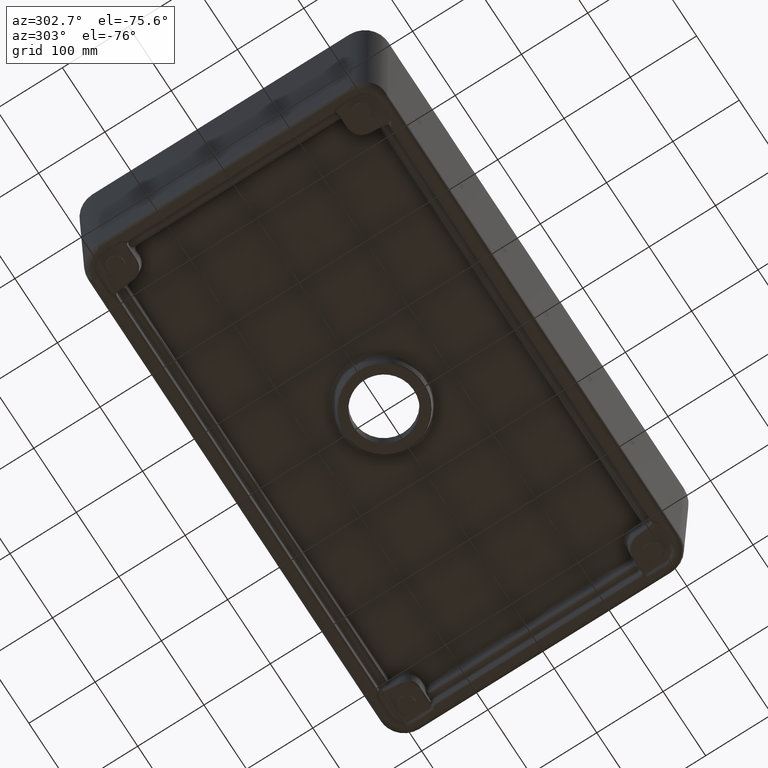
[diagram: clean part render]
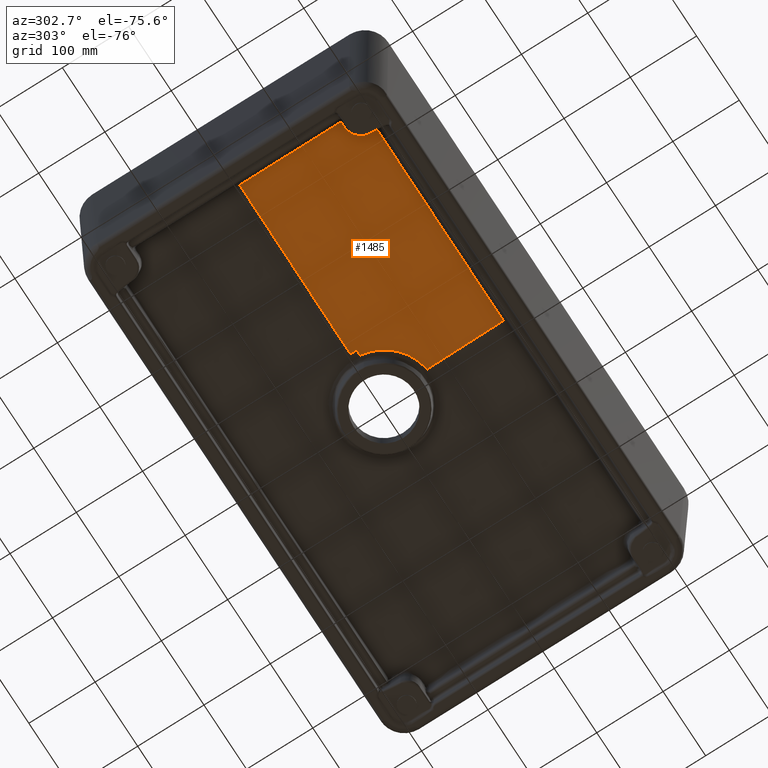
[diagram: same view with one face highlighted and labeled with its STEP entity id]
A machine part, auxiliary view. The second image highlights one B-rep face of the part: STEP entity #1485.
In plain terms, the highlighted face is a freeform B-spline surface patch.
Its self-contained STEP definition (entity closure, byte-faithful):
#373=B_SPLINE_SURFACE_WITH_KNOTS('',3,3,((#15187,#15188,#15189,#15190,#15191,
#15192,#15193,#15194,#15195,#15196,#15197,#15198,#15199,#15200,#15201,#15202,
#15203,#15204,#15205,#15206,#15207,#15208,#15209,#15210,#15211),(#15212,
#15213,#15214,#15215,#15216,#15217,#15218,#15219,#15220,#15221,#15222,#15223,
#15224,#15225,#15226,#15227,#15228,#15229,#15230,#15231,#15232,#15233,#15234,
#15235,#15236),(#15237,#15238,#15239,#15240,#15241,#15242,#15243,#15244,
#15245,#15246,#15247,#15248,#15249,#15250,#15251,#15252,#15253,#15254,#15255,
#15256,#15257,#15258,#15259,#15260,#15261),(#15262,#15263,#15264,#15265,
#15266,#15267,#15268,#15269,#15270,#15271,#15272,#15273,#15274,#15275,#15276,
#15277,#15278,#15279,#15280,#15281,#15282,#15283,#15284,#15285,#15286),
(#15287,#15288,#15289,#15290,#15291,#15292,#15293,#15294,#15295,#15296,
#15297,#15298,#15299,#15300,#15301,#15302,#15303,#15304,#15305,#15306,#15307,
#15308,#15309,#15310,#15311),(#15312,#15313,#15314,#15315,#15316,#15317,
#15318,#15319,#15320,#15321,#15322,#15323,#15324,#15325,#15326,#15327,#15328,
#15329,#15330,#15331,#15332,#15333,#15334,#15335,#15336),(#15337,#15338,
#15339,#15340,#15341,#15342,#15343,#15344,#15345,#15346,#15347,#15348,#15349,
#15350,#15351,#15352,#15353,#15354,#15355,#15356,#15357,#15358,#15359,#15360,
#15361)),.UNSPECIFIED.,.F.,.F.,.F.,(4,3,4),(4,3,3,3,3,3,3,3,4),(0.,0.5,
1.),(0.,0.125,0.25,0.375,0.5,0.625,0.75,0.875,1.),.UNSPECIFIED.);
#459=B_SPLINE_CURVE_WITH_KNOTS('',3,(#7396,#7397,#7398,#7399),
 .UNSPECIFIED.,.F.,.F.,(4,4),(0.,1.),.UNSPECIFIED.);
#731=B_SPLINE_CURVE_WITH_KNOTS('',3,(#15108,#15109,#15110,#15111,#15112,
#15113),.UNSPECIFIED.,.F.,.F.,(4,2,4),(0.,0.5,1.),.UNSPECIFIED.);
#732=B_SPLINE_CURVE_WITH_KNOTS('',3,(#15115,#15116,#15117,#15118),
 .UNSPECIFIED.,.F.,.F.,(4,4),(0.,1.),.UNSPECIFIED.);
#733=B_SPLINE_CURVE_WITH_KNOTS('',3,(#15120,#15121,#15122,#15123),
 .UNSPECIFIED.,.F.,.F.,(4,4),(0.,1.),.UNSPECIFIED.);
#734=B_SPLINE_CURVE_WITH_KNOTS('',3,(#15127,#15128,#15129,#15130,#15131),
 .UNSPECIFIED.,.F.,.F.,(4,1,4),(0.,0.0950788596363253,1.),.UNSPECIFIED.);
#735=B_SPLINE_CURVE_WITH_KNOTS('',3,(#15133,#15134,#15135,#15136,#15137),
 .UNSPECIFIED.,.F.,.F.,(4,1,4),(0.,0.0931165313621305,1.),.UNSPECIFIED.);
#736=B_SPLINE_CURVE_WITH_KNOTS('',3,(#15139,#15140,#15141,#15142),
 .UNSPECIFIED.,.F.,.F.,(4,4),(0.,1.),.UNSPECIFIED.);
#737=B_SPLINE_CURVE_WITH_KNOTS('',3,(#15144,#15145,#15146,#15147),
 .UNSPECIFIED.,.F.,.F.,(4,4),(0.,1.),.UNSPECIFIED.);
#738=B_SPLINE_CURVE_WITH_KNOTS('',3,(#15149,#15150,#15151,#15152),
 .UNSPECIFIED.,.F.,.F.,(4,4),(0.,1.),.UNSPECIFIED.);
#739=B_SPLINE_CURVE_WITH_KNOTS('',3,(#15154,#15155,#15156,#15157,#15158,
#15159),.UNSPECIFIED.,.F.,.F.,(4,2,4),(0.,0.5,1.),.UNSPECIFIED.);
#740=B_SPLINE_CURVE_WITH_KNOTS('',3,(#15161,#15162,#15163,#15164,#15165,
#15166,#15167),.UNSPECIFIED.,.F.,.F.,(4,3,4),(0.,0.68575544554334,1.),
 .UNSPECIFIED.);
#741=B_SPLINE_CURVE_WITH_KNOTS('',3,(#15169,#15170,#15171,#15172,#15173,
#15174,#15175,#15176),.UNSPECIFIED.,.F.,.F.,(4,2,2,4),(0.,0.5,0.75,1.),
 .UNSPECIFIED.);
#742=B_SPLINE_CURVE_WITH_KNOTS('',3,(#15178,#15179,#15180,#15181),
 .UNSPECIFIED.,.F.,.F.,(4,4),(0.,1.),.UNSPECIFIED.);
#743=B_SPLINE_CURVE_WITH_KNOTS('',3,(#15183,#15184,#15185,#15186),
 .UNSPECIFIED.,.F.,.F.,(4,4),(0.,1.),.UNSPECIFIED.);
#1195=CIRCLE('',#5991,71.7782195508756);
#1485=ADVANCED_FACE('',(#1852),#373,.T.);
#1852=FACE_OUTER_BOUND('',#2208,.T.);
#2208=EDGE_LOOP('',(#3368,#3369,#3370,#3371,#3372,#3373,#3374,#3375,#3376,
#3377,#3378,#3379,#3380,#3381,#3382));
#3368=ORIENTED_EDGE('',*,*,#5300,.F.);
#3369=ORIENTED_EDGE('',*,*,#5301,.T.);
#3370=ORIENTED_EDGE('',*,*,#5302,.T.);
#3371=ORIENTED_EDGE('',*,*,#5303,.F.);
#3372=ORIENTED_EDGE('',*,*,#5304,.F.);
#3373=ORIENTED_EDGE('',*,*,#5305,.F.);
#3374=ORIENTED_EDGE('',*,*,#5306,.F.);
#3375=ORIENTED_EDGE('',*,*,#5307,.F.);
#3376=ORIENTED_EDGE('',*,*,#5308,.T.);
#3377=ORIENTED_EDGE('',*,*,#5309,.F.);
#3378=ORIENTED_EDGE('',*,*,#5310,.F.);
#3379=ORIENTED_EDGE('',*,*,#5311,.F.);
#3380=ORIENTED_EDGE('',*,*,#5312,.F.);
#3381=ORIENTED_EDGE('',*,*,#5313,.F.);
#3382=ORIENTED_EDGE('',*,*,#4861,.F.);
#4286=VERTEX_POINT('',#7394);
#4288=VERTEX_POINT('',#7400);
#4547=VERTEX_POINT('',#15114);
#4548=VERTEX_POINT('',#15119);
#4549=VERTEX_POINT('',#15124);
#4550=VERTEX_POINT('',#15126);
#4551=VERTEX_POINT('',#15132);
#4552=VERTEX_POINT('',#15138);
#4553=VERTEX_POINT('',#15143);
#4554=VERTEX_POINT('',#15148);
#4555=VERTEX_POINT('',#15153);
#4556=VERTEX_POINT('',#15160);
#4557=VERTEX_POINT('',#15168);
#4558=VERTEX_POINT('',#15177);
#4559=VERTEX_POINT('',#15182);
#4861=EDGE_CURVE('',#4286,#4288,#459,.T.);
#5300=EDGE_CURVE('',#4547,#4286,#731,.T.);
#5301=EDGE_CURVE('',#4547,#4548,#732,.T.);
#5302=EDGE_CURVE('',#4548,#4549,#733,.T.);
#5303=EDGE_CURVE('',#4550,#4549,#1195,.T.);
#5304=EDGE_CURVE('',#4551,#4550,#734,.T.);
#5305=EDGE_CURVE('',#4552,#4551,#735,.T.);
#5306=EDGE_CURVE('',#4553,#4552,#736,.T.);
#5307=EDGE_CURVE('',#4554,#4553,#737,.T.);
#5308=EDGE_CURVE('',#4554,#4555,#738,.T.);
#5309=EDGE_CURVE('',#4556,#4555,#739,.T.);
#5310=EDGE_CURVE('',#4557,#4556,#740,.T.);
#5311=EDGE_CURVE('',#4558,#4557,#741,.T.);
#5312=EDGE_CURVE('',#4559,#4558,#742,.T.);
#5313=EDGE_CURVE('',#4288,#4559,#743,.T.);
#5991=AXIS2_PLACEMENT_3D('',#15125,#6557,#6558);
#6557=DIRECTION('',(-1.2094491980559E-019,-1.91999080117297E-017,-1.));
#6558=DIRECTION('',(0.,-1.,0.));
#7394=CARTESIAN_POINT('',(-79.3606609573244,1.58439389449932E-016,-16.2585486300568));
#7396=CARTESIAN_POINT('',(-79.3606609573244,1.58439389449932E-016,-16.2585486300568));
#7397=CARTESIAN_POINT('',(-165.957718779827,1.58439389449932E-016,-13.2293965314252));
#7398=CARTESIAN_POINT('',(-252.555019041305,-2.71884499943706E-014,-10.207179018662));
#7399=CARTESIAN_POINT('',(-339.152245823349,-2.71884499943706E-014,-7.1828609782121));
#7400=CARTESIAN_POINT('',(-339.152245823349,-2.71884499943706E-014,-7.1828609782121));
#15108=CARTESIAN_POINT('',(-78.7205268300096,-9.61161835579342,-16.2604908967995));
#15109=CARTESIAN_POINT('',(-78.8857763796553,-8.01334547029809,-16.2615289605124));
#15110=CARTESIAN_POINT('',(-79.0971173029114,-6.41876100624495,-16.2592409643135));
#15111=CARTESIAN_POINT('',(-79.3081738669084,-3.21254318304807,-16.2586783654075));
#15112=CARTESIAN_POINT('',(-79.3608439965704,-1.60681485267575,-16.2585422273714));
#15113=CARTESIAN_POINT('',(-79.3606609573105,3.34605454208292E-013,-16.2585486300572));
#15114=CARTESIAN_POINT('',(-78.7205268300096,-9.61161835579342,-16.2604908967995));
#15115=CARTESIAN_POINT('',(-78.7205268300096,-9.61161835579338,-16.2604908967995));
#15116=CARTESIAN_POINT('',(-77.2286282158496,-9.6070846026812,-16.3123119319995));
#15117=CARTESIAN_POINT('',(-75.7743804470037,-9.60266664180099,-16.362809546626));
#15118=CARTESIAN_POINT('',(-74.3577775690877,-9.59836445009023,-16.4119837322605));
#15119=CARTESIAN_POINT('',(-74.3577773059371,-9.59836510828134,-16.4119762090398));
#15120=CARTESIAN_POINT('',(-74.355961779738,-9.59835893558389,-16.4120467632983));
#15121=CARTESIAN_POINT('',(-73.2814969859923,-9.60329211858358,-16.4493076705098));
#15122=CARTESIAN_POINT('',(-72.2077666081768,-9.60005812958364,-16.4865685045086));
#15123=CARTESIAN_POINT('',(-71.1348827998048,-9.5885792351167,-16.5238292511431));
#15124=CARTESIAN_POINT('',(-71.1345380913413,-9.58907549338596,-16.5181569931564));
#15125=CARTESIAN_POINT('',(0.,0.,-16.5238291538337));
#15126=CARTESIAN_POINT('',(-9.58900749452068,-71.1345838677912,-16.5189281978893));
#15127=CARTESIAN_POINT('',(-9.59132614081394,-72.039967819942,-16.4924259494858));
#15128=CARTESIAN_POINT('',(-9.59127366331929,-72.0112526631611,-16.4930257699945));
#15129=CARTESIAN_POINT('',(-9.59074482483848,-71.7092108798692,-16.4990704214898));
#15130=CARTESIAN_POINT('',(-9.59047029378883,-71.406864330097,-16.502208325746));
#15131=CARTESIAN_POINT('',(-9.58900749452068,-71.1345838677911,-16.5189281978893));
#15132=CARTESIAN_POINT('',(-9.59132614090838,-72.0399679183534,-16.4924259484066));
#15133=CARTESIAN_POINT('',(-9.59858525251133,-74.4305839837852,-16.4094539231132));
#15134=CARTESIAN_POINT('',(-9.59833705881094,-74.3564089584731,-16.4122907900899));
#15135=CARTESIAN_POINT('',(-9.59564535334471,-73.5598583237656,-16.4430571243525));
#15136=CARTESIAN_POINT('',(-9.59264873888988,-72.7636801723729,-16.4773085843024));
#15137=CARTESIAN_POINT('',(-9.59132614081394,-72.039967819942,-16.4924259494858));
#15138=CARTESIAN_POINT('',(-9.59858407504307,-74.4302320814881,-16.409467381637));
#15139=CARTESIAN_POINT('',(-9.60993857961452,-78.1677590849234,-16.2796848005134));
#15140=CARTESIAN_POINT('',(-9.60622852831494,-76.9219365722192,-16.3220908809136));
#15141=CARTESIAN_POINT('',(-9.60275194232593,-75.6758384845153,-16.361828440603));
#15142=CARTESIAN_POINT('',(-9.59858525251133,-74.4305839837852,-16.4094539231132));
#15143=CARTESIAN_POINT('',(-9.60995098072293,-78.1719273947818,-16.2795430551955));
#15144=CARTESIAN_POINT('',(-9.61158967266691,-78.716126083654,-16.2608127205679));
#15145=CARTESIAN_POINT('',(-9.61103657342273,-78.5347346919684,-16.2671346738574));
#15146=CARTESIAN_POINT('',(-9.61049129756413,-78.3533339755557,-16.2733672054407));
#15147=CARTESIAN_POINT('',(-9.60995099367444,-78.1719273897035,-16.2795429071592));
#15148=CARTESIAN_POINT('',(-9.61158967266691,-78.7161260836539,-16.2608127205679));
#15149=CARTESIAN_POINT('',(-9.61160443696268,-78.716120177034,-16.2606439638946));
#15150=CARTESIAN_POINT('',(-9.72073526768724,-114.627257717023,-15.0132728608691));
#15151=CARTESIAN_POINT('',(-9.83039538844274,-150.538182829553,-13.7598519451068));
#15152=CARTESIAN_POINT('',(-9.94000486107273,-186.449128269412,-12.5070099400679));
#15153=CARTESIAN_POINT('',(-9.94000486107273,-186.449128269412,-12.5070099400679));
#15154=CARTESIAN_POINT('',(-305.891404052849,-186.023372029492,-6.52412619601784));
#15155=CARTESIAN_POINT('',(-256.576341731028,-186.14657472681,-7.99340952550588));
#15156=CARTESIAN_POINT('',(-207.258639006441,-186.247244240061,-9.38530560852682));
#15157=CARTESIAN_POINT('',(-108.609664826935,-186.387053251082,-11.6094890382458));
#15158=CARTESIAN_POINT('',(-59.2774505724605,-186.448710254635,-12.415275443673));
#15159=CARTESIAN_POINT('',(-9.94000485817538,-186.449127320172,-12.5070099731845));
#15160=CARTESIAN_POINT('',(-305.891404052849,-186.023372029492,-6.52412619601785));
#15161=CARTESIAN_POINT('',(-307.168488455996,-174.369749778984,-6.69191102893837));
#15162=CARTESIAN_POINT('',(-306.876748834559,-177.033633026236,-6.65484395571497));
#15163=CARTESIAN_POINT('',(-306.584981695307,-179.697500928866,-6.61687999592213));
#15164=CARTESIAN_POINT('',(-306.29297327441,-182.361329615202,-6.57805034738253));
#15165=CARTESIAN_POINT('',(-306.159161635362,-183.582017982914,-6.56025682314511));
#15166=CARTESIAN_POINT('',(-306.02530505152,-184.802698785324,-6.54228132880495));
#15167=CARTESIAN_POINT('',(-305.891404052849,-186.023372029492,-6.52412619601785));
#15168=CARTESIAN_POINT('',(-307.168488455996,-174.369749778984,-6.69191102893837));
#15169=CARTESIAN_POINT('',(-330.873331027109,-152.907964654084,-6.29773013251909));
#15170=CARTESIAN_POINT('',(-324.993755165929,-152.959451069942,-6.48336987422688));
#15171=CARTESIAN_POINT('',(-319.265756977803,-155.210029695973,-6.63106629303176));
#15172=CARTESIAN_POINT('',(-312.774497192336,-161.091206803786,-6.74077581307458));
#15173=CARTESIAN_POINT('',(-310.986727251189,-163.426320309122,-6.75858295658406));
#15174=CARTESIAN_POINT('',(-308.325961268508,-168.646651888911,-6.7543246162123));
#15175=CARTESIAN_POINT('',(-307.488661659428,-171.446238640393,-6.73259074024154));
#15176=CARTESIAN_POINT('',(-307.168488455997,-174.369749778984,-6.69191102893836));
#15177=CARTESIAN_POINT('',(-330.873331027109,-152.907964654084,-6.29773013251909));
#15178=CARTESIAN_POINT('',(-339.069882658701,-152.836099453995,-6.03836032832409));
#15179=CARTESIAN_POINT('',(-336.337705103015,-152.860098691317,-6.12500424777423));
#15180=CARTESIAN_POINT('',(-333.605521213413,-152.884039343236,-6.21146488270219));
#15181=CARTESIAN_POINT('',(-330.873331027109,-152.907964654084,-6.29773013251909));
#15182=CARTESIAN_POINT('',(-339.069882658701,-152.836099453995,-6.03836032832409));
#15183=CARTESIAN_POINT('',(-339.152245823349,-1.81256139093517E-014,-7.1828609782121));
#15184=CARTESIAN_POINT('',(-339.152068713007,-50.947262622937,-7.18286716360649));
#15185=CARTESIAN_POINT('',(-339.13248288463,-101.893830841806,-6.76745097164368));
#15186=CARTESIAN_POINT('',(-339.069882658701,-152.836099453995,-6.03836032832406));
#15187=CARTESIAN_POINT('',(-5.83180774458292,-71.5409143156579,-16.5238292511432));
#15188=CARTESIAN_POINT('',(-11.6971630445936,-71.0627875711155,-16.5238292511432));
#15189=CARTESIAN_POINT('',(-17.4938810731579,-69.853741268499,-16.5238292511432));
#15190=CARTESIAN_POINT('',(-22.9747341103673,-68.0020146410972,-16.5238292511432));
#15191=CARTESIAN_POINT('',(-28.4555871475767,-66.1502880136954,-16.5238292511432));
#15192=CARTESIAN_POINT('',(-33.6172609137668,-63.6595875438341,-16.5238292511432));
#15193=CARTESIAN_POINT('',(-38.2923082009544,-60.7108848175778,-16.5238292511432));
#15194=CARTESIAN_POINT('',(-42.967355488142,-57.7621820913215,-16.5238292511432));
#15195=CARTESIAN_POINT('',(-47.1556686481047,-54.3598281673203,-16.5238292511432));
#15196=CARTESIAN_POINT('',(-50.7952660456375,-50.7144294066589,-16.5238292511432));
#15197=CARTESIAN_POINT('',(-54.4348634431702,-47.0690306459974,-16.5238292511432));
#15198=CARTESIAN_POINT('',(-57.5278647635815,-43.1834233065411,-16.5238292511432));
#15199=CARTESIAN_POINT('',(-60.1009890623125,-39.2426237199027,-16.5238292511432));
#15200=CARTESIAN_POINT('',(-62.6741133610434,-35.3018241332644,-16.5238292511432));
#15201=CARTESIAN_POINT('',(-64.729944116773,-31.3066667406861,-16.5238292511431));
#15202=CARTESIAN_POINT('',(-66.3470922772213,-27.3893364112379,-16.5238292511431));
#15203=CARTESIAN_POINT('',(-67.9642404376696,-23.4720060817897,-16.5238292511431));
#15204=CARTESIAN_POINT('',(-69.1446368957165,-19.6320135855967,-16.5238292511431));
#15205=CARTESIAN_POINT('',(-69.9843229369745,-15.9470042874312,-16.5238292511431));
#15206=CARTESIAN_POINT('',(-70.8240089782324,-12.2619949892658,-16.5238292511431));
#15207=CARTESIAN_POINT('',(-71.3240211310551,-8.73100046247833,-16.5238292511431));
#15208=CARTESIAN_POINT('',(-71.5756507330965,-5.38874983867892,-16.5238292511431));
#15209=CARTESIAN_POINT('',(-71.8272803351379,-2.0464992148795,-16.5238292511431));
#15210=CARTESIAN_POINT('',(-71.8308873236275,1.10793238926827,-16.5238292511431));
#15211=CARTESIAN_POINT('',(-71.6628360414588,4.06821007140315,-16.5238292511431));
#15212=CARTESIAN_POINT('',(-6.66082233936789,-121.878652517267,-14.7658198227011));
#15213=CARTESIAN_POINT('',(-16.653168779702,-121.332558160152,-14.7658198227011));
#15214=CARTESIAN_POINT('',(-26.5620704539384,-119.540841702016,-14.7658198227011));
#15215=CARTESIAN_POINT('',(-35.9632491891916,-116.642261643958,-14.7658198227011));
#15216=CARTESIAN_POINT('',(-45.3644279244448,-113.743681585899,-14.7658198227011));
#15217=CARTESIAN_POINT('',(-54.2520812029355,-109.744387943409,-14.7658198227011));
#15218=CARTESIAN_POINT('',(-62.3333346972254,-104.944403753536,-14.7658198227011));
#15219=CARTESIAN_POINT('',(-70.4145881915154,-100.144419563662,-14.7658198227011));
#15220=CARTESIAN_POINT('',(-77.6890610787731,-94.5511363632679,-14.7658198227011));
#15221=CARTESIAN_POINT('',(-84.0418141689235,-88.5197490103623,-14.7658198227011));
#15222=CARTESIAN_POINT('',(-90.3945672590739,-82.4883616574567,-14.7658198227011));
#15223=CARTESIAN_POINT('',(-95.829074881288,-76.0237879261928,-14.7658198227011));
#15224=CARTESIAN_POINT('',(-100.382345013719,-69.4417547532326,-14.7658198227011));
#15225=CARTESIAN_POINT('',(-104.93561514615,-62.8597215802725,-14.7658198227011));
#15226=CARTESIAN_POINT('',(-108.612001544203,-56.1617649083316,-14.7658198227011));
#15227=CARTESIAN_POINT('',(-111.53912610216,-49.5761620340643,-14.7658198227011));
#15228=CARTESIAN_POINT('',(-114.466250660117,-42.9905591597971,-14.7658198227011));
#15229=CARTESIAN_POINT('',(-116.647417976248,-36.5165662259149,-14.7658198227011));
#15230=CARTESIAN_POINT('',(-118.242359795937,-30.2905404961604,-14.7658198227011));
#15231=CARTESIAN_POINT('',(-119.837301615626,-24.0645147664059,-14.7658198227011));
#15232=CARTESIAN_POINT('',(-120.847823980855,-18.0848571253945,-14.7658198227011));
#15233=CARTESIAN_POINT('',(-121.427535403801,-12.4147549077681,-14.7658198227011));
#15234=CARTESIAN_POINT('',(-122.007246826748,-6.74465269014174,-14.7658198227011));
#15235=CARTESIAN_POINT('',(-122.15680122198,-1.38255003783315,-14.7658198227011));
#15236=CARTESIAN_POINT('',(-122.005723477331,3.65731218718005,-14.7658198227011));
#15237=CARTESIAN_POINT('',(-7.52094005121057,-172.215858667405,-13.0077247986429));
#15238=CARTESIAN_POINT('',(-21.6402340110819,-171.599246676736,-13.0077247986429));
#15239=CARTESIAN_POINT('',(-35.6609576838365,-169.22231939411,-13.0077247986429));
#15240=CARTESIAN_POINT('',(-48.9818137288888,-165.274463967165,-13.0077247986429));
#15241=CARTESIAN_POINT('',(-62.3026697739411,-161.326608540221,-13.0077247986429));
#15242=CARTESIAN_POINT('',(-74.9153689462232,-155.816420054125,-13.0077247986429));
#15243=CARTESIAN_POINT('',(-86.4016834095081,-149.163050450869,-13.0077247986429));
#15244=CARTESIAN_POINT('',(-97.8879978727929,-142.509680847613,-13.0077247986429));
#15245=CARTESIAN_POINT('',(-108.247275508444,-134.72356230987,-13.0077247986429));
#15246=CARTESIAN_POINT('',(-117.311708932882,-126.304510857895,-13.0077247986429));
#15247=CARTESIAN_POINT('',(-126.376142357321,-117.885459405919,-13.0077247986429));
#15248=CARTESIAN_POINT('',(-134.150561829206,-108.840473492305,-13.0077247986429));
#15249=CARTESIAN_POINT('',(-140.6823450108,-99.6159842498559,-13.0077247986429));
#15250=CARTESIAN_POINT('',(-147.214128192395,-90.3914950074063,-13.0077247986429));
#15251=CARTESIAN_POINT('',(-152.509399548589,-80.9897387861885,-13.0077247986429));
#15252=CARTESIAN_POINT('',(-156.744851275982,-71.7350549890047,-13.0077247986429));
#15253=CARTESIAN_POINT('',(-160.980303003375,-62.480371191821,-13.0077247986429));
#15254=CARTESIAN_POINT('',(-164.160613247756,-53.3717604852631,-13.0077247986429));
#15255=CARTESIAN_POINT('',(-166.509240467013,-44.6042526549168,-13.0077247986429));
#15256=CARTESIAN_POINT('',(-168.857867686271,-35.8367448245705,-13.0077247986429));
#15257=CARTESIAN_POINT('',(-170.377387046013,-27.4081095910855,-13.0077247986429));
#15258=CARTESIAN_POINT('',(-171.283741792605,-19.4099539754591,-13.0077247986429));
#15259=CARTESIAN_POINT('',(-172.190096539198,-11.4117983598326,-13.0077247986429));
#15260=CARTESIAN_POINT('',(-172.484234174555,-3.84193534786769,-13.0077247986429));
#15261=CARTESIAN_POINT('',(-172.348844995586,3.27752108959447,-13.0077247986429));
#15262=CARTESIAN_POINT('',(-8.37438869303839,-222.553179181185,-11.2496562077793));
#15263=CARTESIAN_POINT('',(-26.6206395486678,-221.866596327514,-11.2496562077793));
#15264=CARTESIAN_POINT('',(-44.7532627867225,-218.905002982823,-11.2496562077793));
#15265=CARTESIAN_POINT('',(-61.9939351897917,-213.908391488783,-11.2496562077793));
#15266=CARTESIAN_POINT('',(-79.234607592861,-208.911779994744,-11.2496562077793));
#15267=CARTESIAN_POINT('',(-95.5725528646258,-201.891190176757,-11.2496562077793));
#15268=CARTESIAN_POINT('',(-110.4641738759,-193.384886274884,-11.2496562077793));
#15269=CARTESIAN_POINT('',(-125.355794887174,-184.87858237301,-11.2496562077793));
#15270=CARTESIAN_POINT('',(-138.800167820664,-174.900037179817,-11.2496562077793));
#15271=CARTESIAN_POINT('',(-150.576597938287,-164.093680874573,-11.2496562077793));
#15272=CARTESIAN_POINT('',(-162.353028055911,-153.287324569328,-11.2496562077793));
#15273=CARTESIAN_POINT('',(-172.467701270161,-141.662236462729,-11.2496562077793));
#15274=CARTESIAN_POINT('',(-180.978347610753,-129.795553258639,-11.2496562077793));
#15275=CARTESIAN_POINT('',(-189.488993951345,-117.928870054549,-11.2496562077793));
#15276=CARTESIAN_POINT('',(-196.403508499874,-105.82352874499,-11.2496562077793));
#15277=CARTESIAN_POINT('',(-201.947641028575,-93.8999373409191,-11.2496562077793));
#15278=CARTESIAN_POINT('',(-207.491773557276,-81.9763459368485,-11.2496562077793));
#15279=CARTESIAN_POINT('',(-211.671575793315,-70.2332498107149,-11.2496562077793));
#15280=CARTESIAN_POINT('',(-214.774225134197,-58.9243597134492,-11.2496562077793));
#15281=CARTESIAN_POINT('',(-217.876874475079,-47.6154696161835,-11.2496562077793));
#15282=CARTESIAN_POINT('',(-219.905715293666,-36.7379242063646,-11.2496562077793));
#15283=CARTESIAN_POINT('',(-221.13902180575,-26.411758450181,-11.2496562077793));
#15284=CARTESIAN_POINT('',(-222.372328317834,-16.0855926939973,-11.2496562077793));
#15285=CARTESIAN_POINT('',(-222.811341696298,-6.30798846001401,-11.2496562077793));
#15286=CARTESIAN_POINT('',(-222.691916604464,2.89106012822017,-11.2496562077793));
#15287=CARTESIAN_POINT('',(-9.22783733486622,-272.890499694965,-9.49158761691582));
#15288=CARTESIAN_POINT('',(-31.6010450862536,-272.133945978292,-9.49158761691582));
#15289=CARTESIAN_POINT('',(-53.8455678896084,-268.587686571536,-9.49158761691582));
#15290=CARTESIAN_POINT('',(-75.0060566506946,-262.542319010402,-9.49158761691582));
#15291=CARTESIAN_POINT('',(-96.1665454117808,-256.496951449267,-9.49158761691582));
#15292=CARTESIAN_POINT('',(-116.229736783028,-247.965960299389,-9.49158761691582));
#15293=CARTESIAN_POINT('',(-134.526664342292,-237.606722098898,-9.49158761691582));
#15294=CARTESIAN_POINT('',(-152.823591901555,-227.247483898408,-9.49158761691582));
#15295=CARTESIAN_POINT('',(-169.353060132884,-215.076512049764,-9.49158761691582));
#15296=CARTESIAN_POINT('',(-183.841486943693,-201.88285089125,-9.49158761691582));
#15297=CARTESIAN_POINT('',(-198.329913754501,-188.689189732737,-9.49158761691582));
#15298=CARTESIAN_POINT('',(-210.784840711116,-174.483999433153,-9.49158761691582));
#15299=CARTESIAN_POINT('',(-221.274350210706,-159.975122267422,-9.49158761691582));
#15300=CARTESIAN_POINT('',(-231.763859710296,-145.466245101691,-9.49158761691582));
#15301=CARTESIAN_POINT('',(-240.297617451159,-130.657318703791,-9.49158761691582));
#15302=CARTESIAN_POINT('',(-247.150430781168,-116.064819692833,-9.49158761691582));
#15303=CARTESIAN_POINT('',(-254.003244111177,-101.472320681876,-9.49158761691582));
#15304=CARTESIAN_POINT('',(-259.182538338873,-87.0947391361666,-9.49158761691581));
#15305=CARTESIAN_POINT('',(-263.039209801381,-73.2444667719816,-9.49158761691581));
#15306=CARTESIAN_POINT('',(-266.895881263888,-59.3941944077966,-9.49158761691581));
#15307=CARTESIAN_POINT('',(-269.43404354132,-46.0677388216436,-9.49158761691581));
#15308=CARTESIAN_POINT('',(-270.994301818895,-33.4135629249028,-9.49158761691581));
#15309=CARTESIAN_POINT('',(-272.55456009647,-20.759387028162,-9.49158761691581));
#15310=CARTESIAN_POINT('',(-273.13844921804,-8.77404157216033,-9.49158761691581));
#15311=CARTESIAN_POINT('',(-273.034988213343,2.50459916684588,-9.49158761691581));
#15312=CARTESIAN_POINT('',(-10.0828697704043,-323.227793213517,-7.73351745122165));
#15313=CARTESIAN_POINT('',(-36.5830322043182,-322.401138784889,-7.73351745122165));
#15314=CARTESIAN_POINT('',(-62.9394361655916,-318.27008394233,-7.73351745122165));
#15315=CARTESIAN_POINT('',(-88.0197082758892,-311.17583698532,-7.73351745122165));
#15316=CARTESIAN_POINT('',(-113.099980386187,-304.081590028309,-7.73351745122165));
#15317=CARTESIAN_POINT('',(-136.888370323615,-294.040080340957,-7.73351745122165));
#15318=CARTESIAN_POINT('',(-158.590546121133,-281.827800703706,-7.73351745122165));
#15319=CARTESIAN_POINT('',(-180.29272191865,-269.615521066455,-7.73351745122165));
#15320=CARTESIAN_POINT('',(-199.907216457321,-255.252025500195,-7.73351745122165));
#15321=CARTESIAN_POINT('',(-217.107564840292,-239.670974165845,-7.73351745122165));
#15322=CARTESIAN_POINT('',(-234.307913223264,-224.089922831496,-7.73351745122165));
#15323=CARTESIAN_POINT('',(-249.103012736166,-207.304556713298,-7.73351745122165));
#15324=CARTESIAN_POINT('',(-261.571302256065,-190.153423331143,-7.73351745122165));
#15325=CARTESIAN_POINT('',(-274.039591775965,-173.002289948988,-7.73351745122165));
#15326=CARTESIAN_POINT('',(-284.192507639904,-155.489727523096,-7.73351745122165));
#15327=CARTESIAN_POINT('',(-292.353917793923,-138.228279736931,-7.73351745122165));
#15328=CARTESIAN_POINT('',(-300.515327947941,-120.966831950766,-7.73351745122165));
#15329=CARTESIAN_POINT('',(-306.694031273922,-103.954733545273,-7.73351745122164));
#15330=CARTESIAN_POINT('',(-311.304644894741,-87.5630551970762,-7.73351745122164));
#15331=CARTESIAN_POINT('',(-315.91525851556,-71.1713768488794,-7.73351745122164));
#15332=CARTESIAN_POINT('',(-318.962665198727,-55.3959950682156,-7.73351745122165));
#15333=CARTESIAN_POINT('',(-320.849801993157,-40.4137987504155,-7.73351745122165));
#15334=CARTESIAN_POINT('',(-322.736938787586,-25.4316024326153,-7.73351745122165));
#15335=CARTESIAN_POINT('',(-323.465634188243,-11.2385112025297,-7.73351745122164));
#15336=CARTESIAN_POINT('',(-323.378071839064,2.11972218364525,-7.73351745122164));
#15337=CARTESIAN_POINT('',(-10.938116850657,-373.565083080803,-5.97544728057815));
#15338=CARTESIAN_POINT('',(-41.5652336677445,-372.668310342352,-5.97544728057815));
#15339=CARTESIAN_POINT('',(-72.0335162928597,-367.952442530455,-5.97544728057815));
#15340=CARTESIAN_POINT('',(-101.033567279398,-359.809299463209,-5.97544728057815));
#15341=CARTESIAN_POINT('',(-130.033618265935,-351.666156395963,-5.97544728057815));
#15342=CARTESIAN_POINT('',(-157.547200328104,-340.114112286563,-5.97544728057815));
#15343=CARTESIAN_POINT('',(-182.654616461906,-326.048776692322,-5.97544728057815));
#15344=CARTESIAN_POINT('',(-207.762032595709,-311.983441098081,-5.97544728057815));
#15345=CARTESIAN_POINT('',(-230.461544092188,-295.42740865948,-5.97544728057815));
#15346=CARTESIAN_POINT('',(-250.373803866893,-277.458955585557,-5.97544728057815));
#15347=CARTESIAN_POINT('',(-270.286063641599,-259.490502511635,-5.97544728057815));
#15348=CARTESIAN_POINT('',(-287.421324708334,-240.124950596294,-5.97544728057815));
#15349=CARTESIAN_POINT('',(-301.868382981409,-220.331552560215,-5.97544728057815));
#15350=CARTESIAN_POINT('',(-316.315441254485,-200.538154524137,-5.97544728057815));
#15351=CARTESIAN_POINT('',(-328.087503712671,-180.321949166236,-5.97544728057815));
#15352=CARTESIAN_POINT('',(-337.557499309815,-160.391547025115,-5.97544728057815));
#15353=CARTESIAN_POINT('',(-347.027494906959,-140.461144883995,-5.97544728057815));
#15354=CARTESIAN_POINT('',(-354.205596097194,-120.814525357384,-5.97544728057815));
#15355=CARTESIAN_POINT('',(-359.570141039358,-101.881437810535,-5.97544728057815));
#15356=CARTESIAN_POINT('',(-364.934685981522,-82.9483502636863,-5.97544728057815));
#15357=CARTESIAN_POINT('',(-368.491326627829,-64.7240401172844,-5.97544728057815));
#15358=CARTESIAN_POINT('',(-370.705332012095,-47.4138219848171,-5.97544728057815));
#15359=CARTESIAN_POINT('',(-372.919337396362,-30.1036038523498,-5.97544728057815));
#15360=CARTESIAN_POINT('',(-373.792829661972,-13.7027662309395,-5.97544728057815));
#15361=CARTESIAN_POINT('',(-373.721157100656,1.73505986997933,-5.97544728057815));